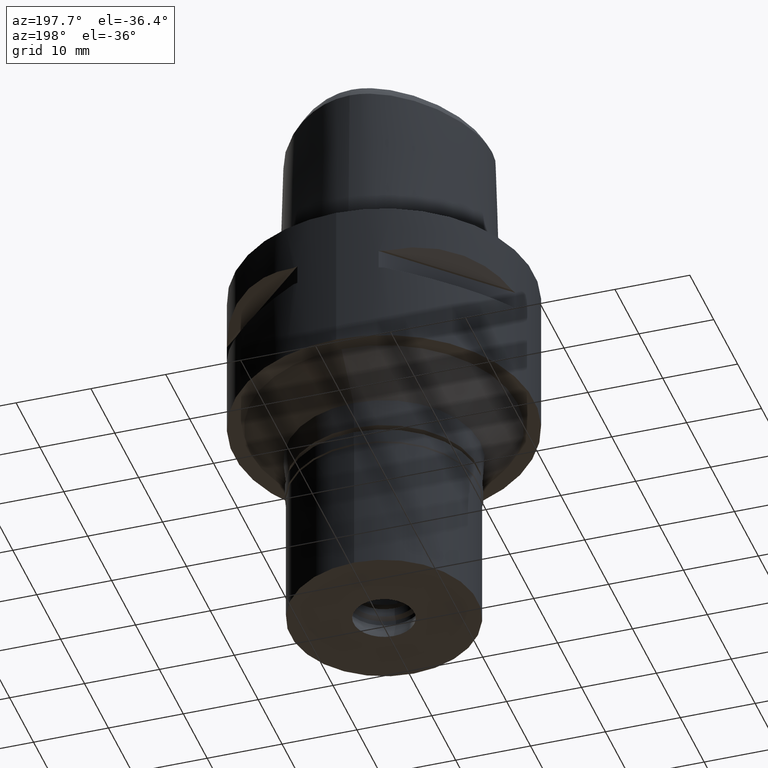
[diagram: clean part render]
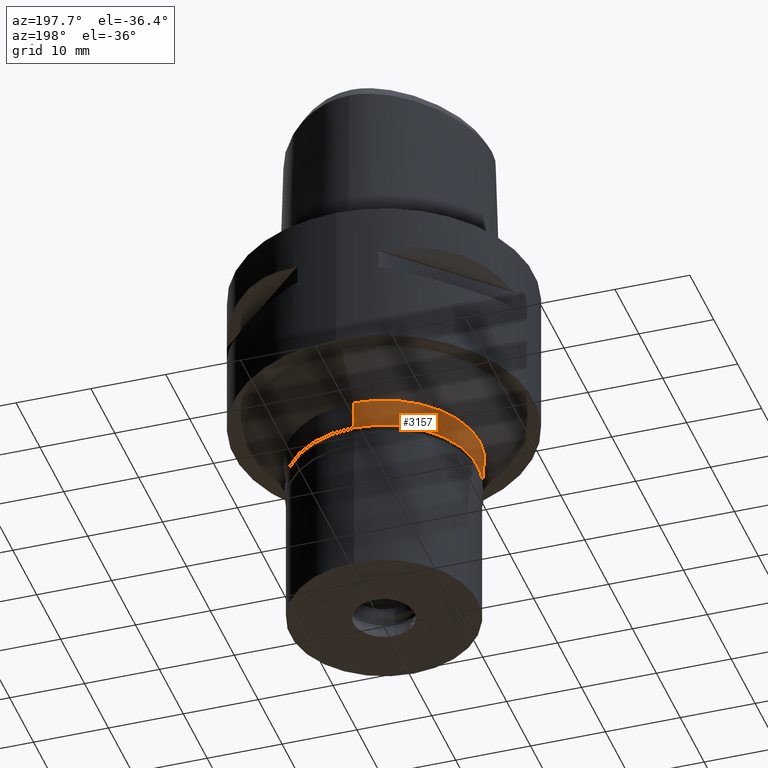
[diagram: same view with one face highlighted and labeled with its STEP entity id]
A machine part, auxiliary view. The second image highlights one B-rep face of the part: STEP entity #3157.
In plain terms, the highlighted conical surface has half-angle 5 deg.
Its self-contained STEP definition (entity closure, byte-faithful):
#333 = ORIENTED_EDGE ( 'NONE', *, *, #1077, .T. ) ;
#443 = VECTOR ( 'NONE', #2658, 1000.000000000000114 ) ;
#487 = VERTEX_POINT ( 'NONE', #1723 ) ;
#631 = DIRECTION ( 'NONE',  ( 0.0000000000000000000, 0.0000000000000000000, 1.000000000000000000 ) ) ;
#740 = VERTEX_POINT ( 'NONE', #1702 ) ;
#769 = CONICAL_SURFACE ( 'NONE', #1389, 12.66185402752000044, 0.08726646259969973729 ) ;
#945 = CARTESIAN_POINT ( 'NONE',  ( 0.0000000000000000000, -12.82370805505000000, -25.00000000000000000 ) ) ;
#966 = EDGE_LOOP ( 'NONE', ( #2439, #3062, #1428, #333 ) ) ;
#1077 = EDGE_CURVE ( 'NONE', #740, #4145, #3754, .T. ) ;
#1389 = AXIS2_PLACEMENT_3D ( 'NONE', #3250, #1465, #4356 ) ;
#1428 = ORIENTED_EDGE ( 'NONE', *, *, #2492, .T. ) ;
#1465 = DIRECTION ( 'NONE',  ( 0.0000000000000000000, 0.0000000000000000000, 1.000000000000000000 ) ) ;
#1702 = CARTESIAN_POINT ( 'NONE',  ( 0.0000000000000000000, 12.82370805505000000, -25.00000000000000000 ) ) ;
#1723 = CARTESIAN_POINT ( 'NONE',  ( 0.0000000000000000000, -12.82370805505000000, -25.00000000000000000 ) ) ;
#1770 = CIRCLE ( 'NONE', #4095, 12.50000000000000000 ) ;
#1785 = CARTESIAN_POINT ( 'NONE',  ( 0.0000000000000000000, 12.50000000000000000, -28.69999999999999929 ) ) ;
#1814 = FACE_OUTER_BOUND ( 'NONE', #966, .T. ) ;
#2315 = CARTESIAN_POINT ( 'NONE',  ( 0.0000000000000000000, -12.50000000000000000, -28.69999999999999929 ) ) ;
#2439 = ORIENTED_EDGE ( 'NONE', *, *, #3500, .T. ) ;
#2492 = EDGE_CURVE ( 'NONE', #487, #740, #3339, .T. ) ;
#2595 = VECTOR ( 'NONE', #3836, 1000.000000000000114 ) ;
#2658 = DIRECTION ( 'NONE',  ( 0.0000000000000000000, -0.08715574274833878810, -0.9961946980916859262 ) ) ;
#2779 = CARTESIAN_POINT ( 'NONE',  ( 0.0000000000000000000, 0.0000000000000000000, -28.69999999999999929 ) ) ;
#3062 = ORIENTED_EDGE ( 'NONE', *, *, #4048, .F. ) ;
#3157 = ADVANCED_FACE ( 'NONE', ( #1814 ), #769, .T. ) ;
#3168 = CARTESIAN_POINT ( 'NONE',  ( 0.0000000000000000000, 0.0000000000000000000, -25.00000000000000000 ) ) ;
#3250 = CARTESIAN_POINT ( 'NONE',  ( 0.0000000000000000000, 0.0000000000000000000, -26.84999999999999787 ) ) ;
#3339 = CIRCLE ( 'NONE', #3652, 12.82370805505000000 ) ;
#3475 = LINE ( 'NONE', #945, #2595 ) ;
#3491 = CARTESIAN_POINT ( 'NONE',  ( 0.0000000000000000000, 12.82370805505000000, -25.00000000000000000 ) ) ;
#3500 = EDGE_CURVE ( 'NONE', #4145, #4350, #1770, .T. ) ;
#3652 = AXIS2_PLACEMENT_3D ( 'NONE', #3168, #3855, #4630 ) ;
#3754 = LINE ( 'NONE', #3491, #443 ) ;
#3836 = DIRECTION ( 'NONE',  ( 0.0000000000000000000, 0.08715574274833878810, -0.9961946980916859262 ) ) ;
#3855 = DIRECTION ( 'NONE',  ( 0.0000000000000000000, 0.0000000000000000000, -1.000000000000000000 ) ) ;
#4048 = EDGE_CURVE ( 'NONE', #487, #4350, #3475, .T. ) ;
#4095 = AXIS2_PLACEMENT_3D ( 'NONE', #2779, #631, #4623 ) ;
#4145 = VERTEX_POINT ( 'NONE', #1785 ) ;
#4350 = VERTEX_POINT ( 'NONE', #2315 ) ;
#4356 = DIRECTION ( 'NONE',  ( 0.0000000000000000000, 1.000000000000000000, 0.0000000000000000000 ) ) ;
#4623 = DIRECTION ( 'NONE',  ( 0.0000000000000000000, 1.000000000000000000, 0.0000000000000000000 ) ) ;
#4630 = DIRECTION ( 'NONE',  ( 0.0000000000000000000, -1.000000000000000000, 0.0000000000000000000 ) ) ;